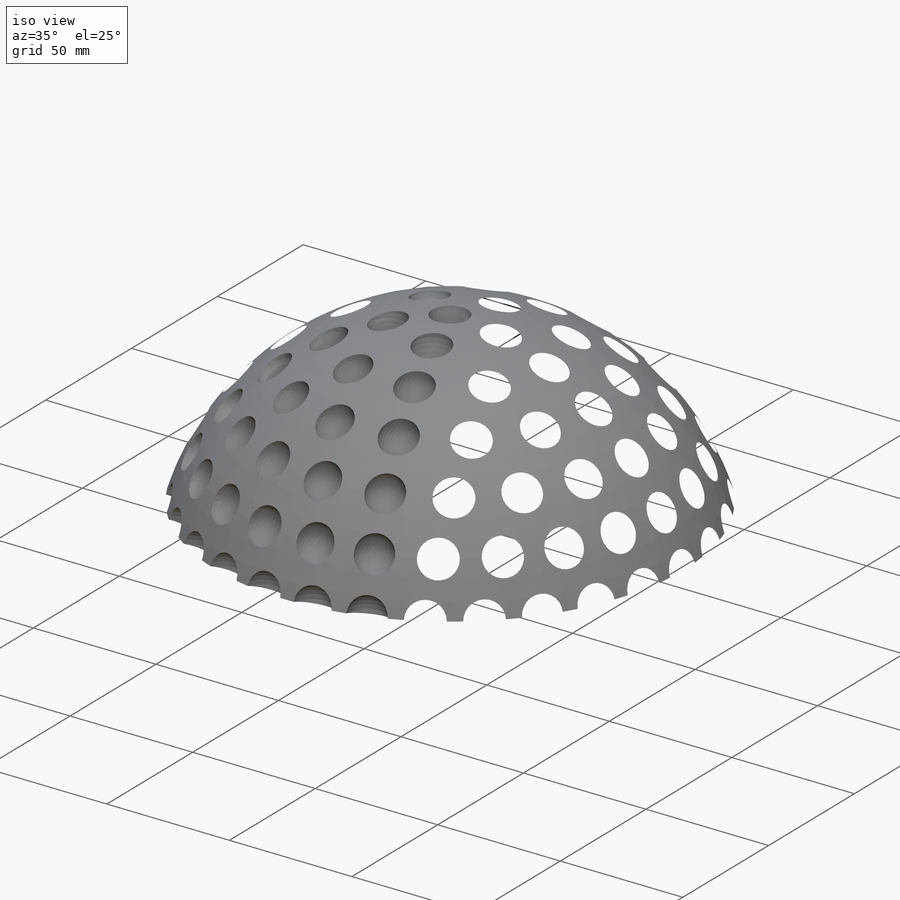
[diagram: iso view]
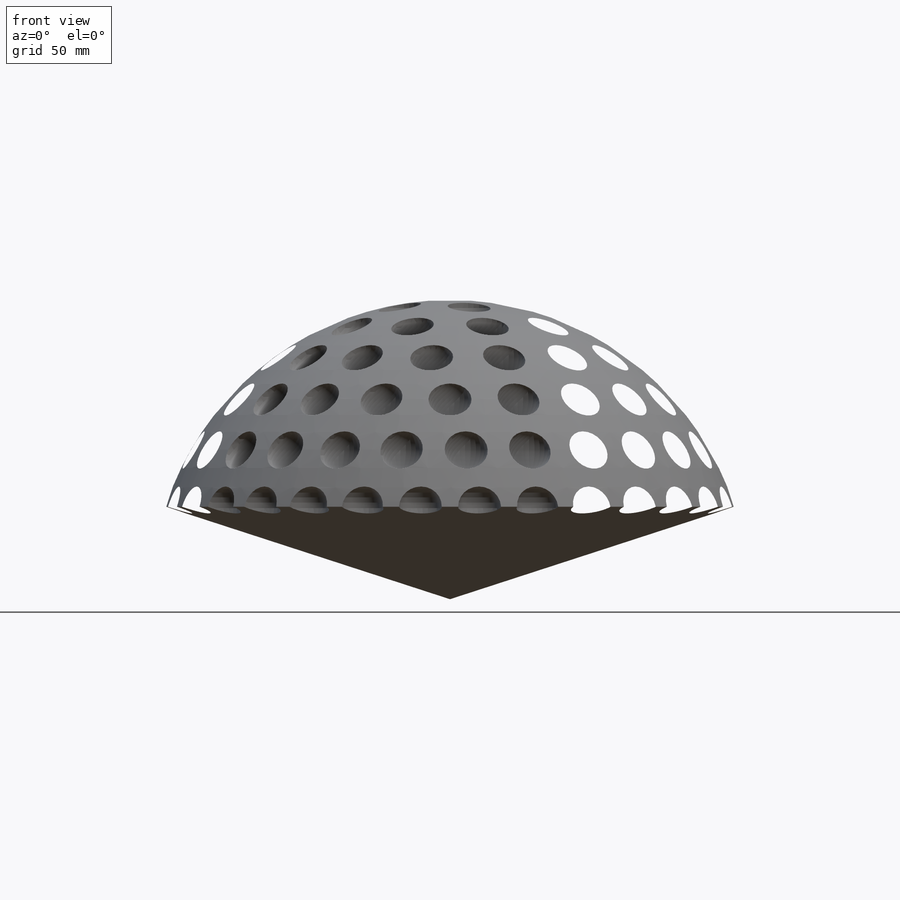
[diagram: front view]
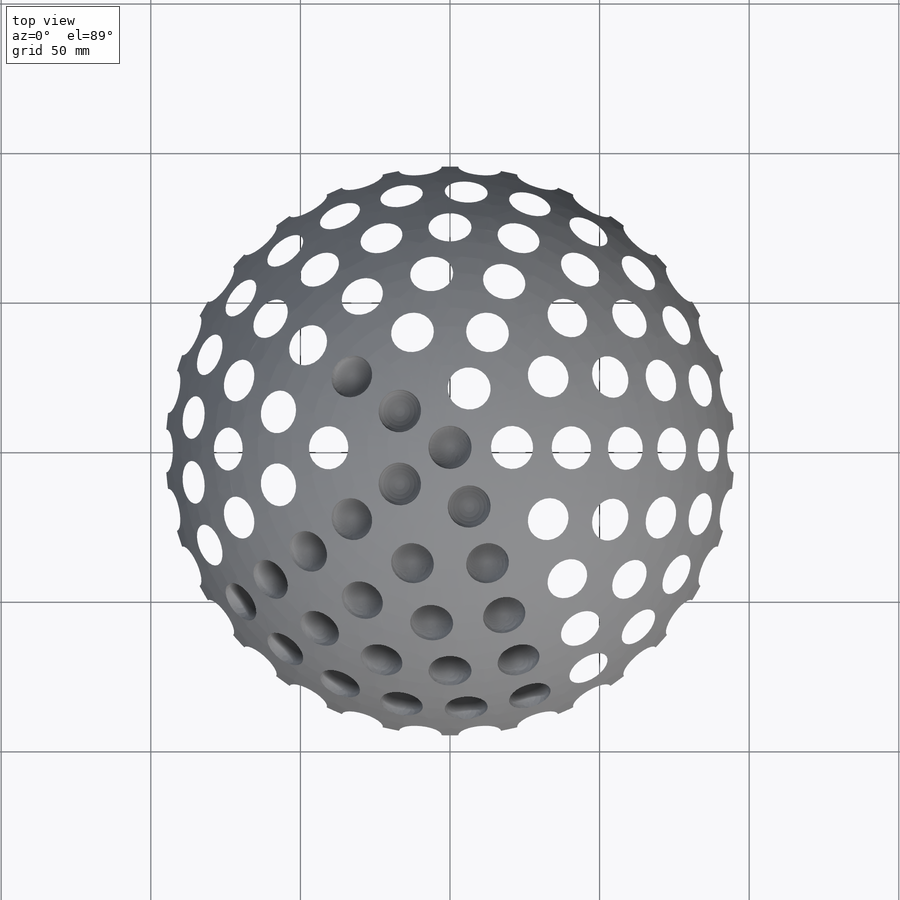
[diagram: top view]
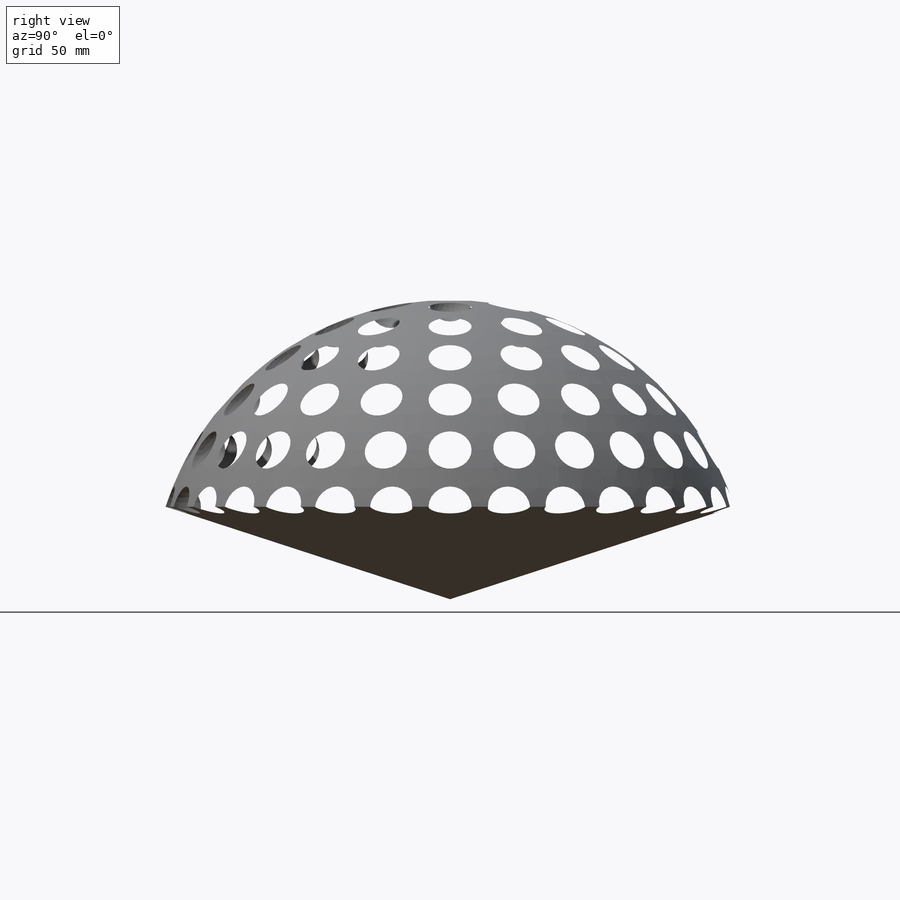
[diagram: right view]
SOLIDWORKS PART (.sldprt)
format: sldprt  version: not decoded by parser v0  size: 1,277,952 bytes
history: native  units: mm
features: delete_body x5, plane x3, sketch x3, revolve x2, pattern_circular x2, material x1, boolean_combine x1 (+8 scaffold rows collapsed)
feature tree (25):
  scaffold x8  (default folders/planes/origin — collapsed)
  material  "Material <nicht festgelegt>"
  plane  "Ebene vorne"
  plane  "Ebene oben"
  plane  "Ebene rechts"
  sketch  "Skizze1"  dims[c1.D1=100.0mm c1.D2=100.0mm c2.D2=72.0deg]
  revolve  "Rotation1"  Angle=72deg
  sketch  "Skizze2"  dims[D1=7.2mm]
  revolve  "Kugel fuer Delle"  Angle=360deg
  sketch  "Skizze7"  dims[D1=7.0 D3=25.0mm D2=1.0 D4=1.0mm]
  delete_body  "Körper-Löschen3"
  delete_body  "Körper-Löschen4"
  delete_body  "Körper-Löschen5"
  delete_body  "Körper-Löschen6"
  delete_body  "Körper-Löschen7"
  boolean_combine  "Kombinieren3"
  pattern_circular  "Kreismuster2"  Count=5 Angle=72deg
  pattern_circular  "Kombinieren4"  [2 undecoded]
decode coverage: 6 of 13 modeling features carry decoded parameters
note: 2 parameter values undecoded
note: suppression state not decoded; provenance and decode notes live in map.json
